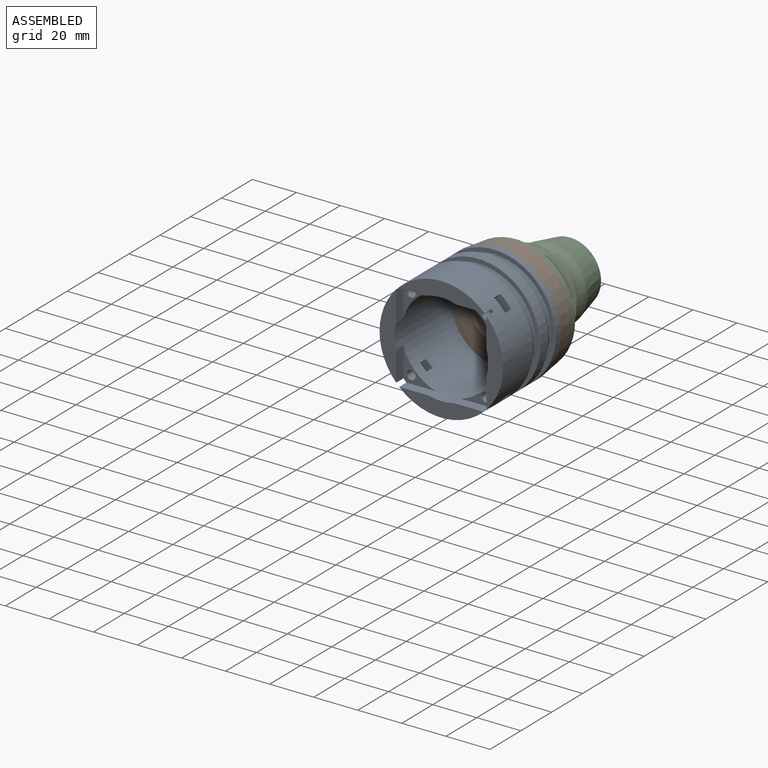
[diagram: assembled view]
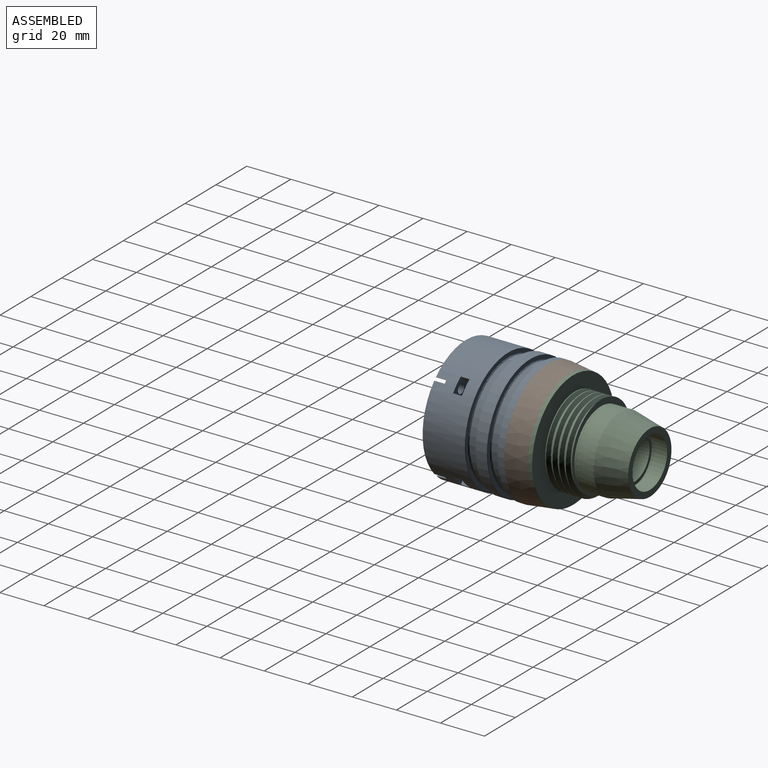
[diagram: assembled view, second angle]
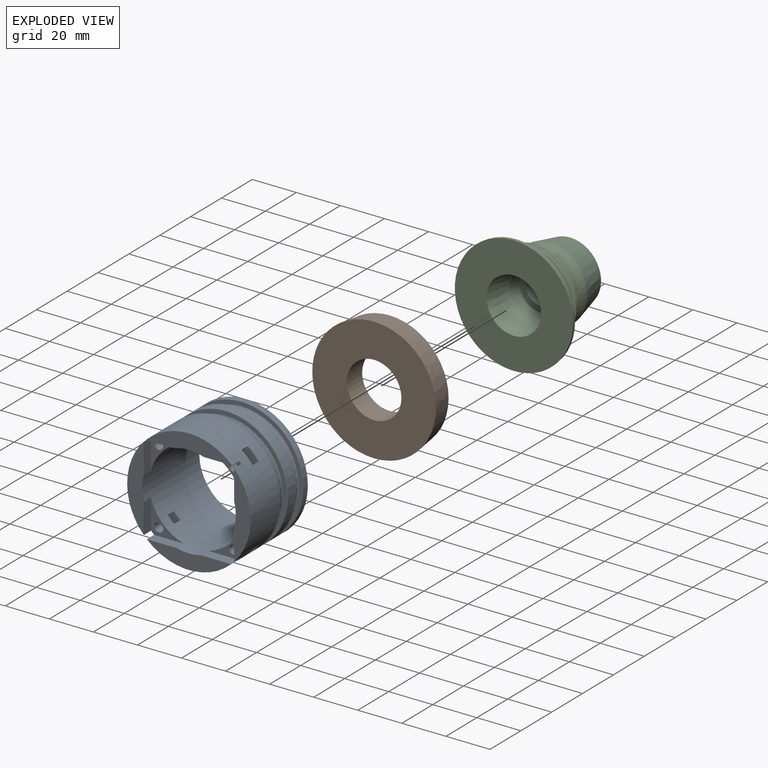
[diagram: exploded view]
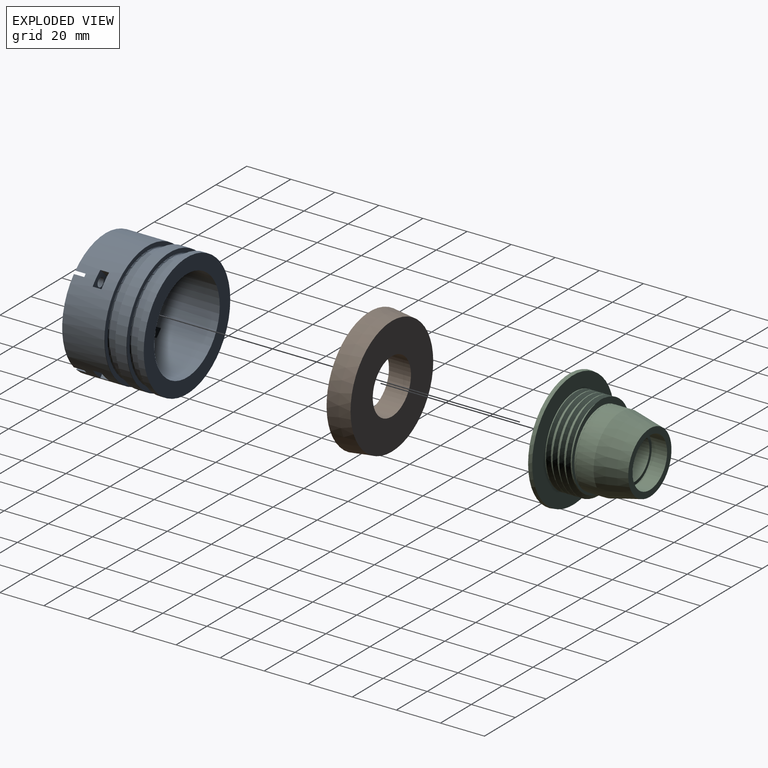
[diagram: exploded view, second angle]
ASSEMBLY  parts=3 mates=2
PART A: 75 faces, bbox 60.7x37x60.7 mm
  f0: cylinder r=25.64mm len=51.28mm, axis (0,-1,0), area 616.4mm2, adj f1,f2
  f1: torus R=26.14mm, axis (0,-1,0), area 127.4mm2, adj f0,f15
  f2: torus R=26.14mm, axis (0,-1,0), area 127.4mm2, adj f0,f33
  f3: plane 9.09x9.09mm, normal (0,1,0), area 33.7mm2, adj f4,f8,f17,f22,f25,f39,f40,f44
  f4: plane 4x2.71mm, normal (-0.71,0,-0.71), area 15.3mm2, adj f3,f8,f51,f65
  f5: plane 9.09x9.09mm, normal (0,-1,0), area 46.3mm2, adj f24,f27,f29,f32,f34,f46,f48,f59
  f6: plane 55.9x55.9mm, normal (0,-1,0), area 307mm2, adj f37,f53
  f7: plane 4x1.43mm, normal (0.71,0,0.71), area 8.1mm2, adj f13,f41,f58,f60
  f8: plane 4x1.43mm, normal (-0.71,0,-0.71), area 8.1mm2, adj f3,f4,f25,f51
  f9: plane 4x2mm, normal (0.71,0,-0.71), area 11.3mm2, adj f35,f45,f50,f65
  f10: plane 13.55x4.7mm, normal (1,0,0), area 63.7mm2, adj f42,f57,f59,f65
  f11: plane 4x1.61mm, normal (0.26,0,-0.97), area 6.6mm2, adj f13,f28,f59,f60
  f12: plane 4x1.43mm, normal (-0.71,0,0.71), area 8.1mm2, adj f19,f35,f45,f52
  f13: plane 9.09x9.09mm, normal (0,1,0), area 33.7mm2, adj f7,f11,f28,f36,f38,f41,f56,f58
  f14: plane 13.55x4.7mm, normal (-1,0,0), area 63.7mm2, adj f59,f65,f67,f72
  f15: plane 55.9x55.9mm, normal (0,1,0), area 307mm2, adj f1,f18
  f16: cylinder r=28.05mm len=56.1mm, axis (0,1,0), area 876.6mm2, adj f31,f49
  f17: plane 4x2.13mm, normal (0.71,0,0.71), area 12.1mm2, adj f3,f40,f44,f51
  f18: torus R=27.95mm, axis (0,1,0), area 27.6mm2, adj f15,f65
  f19: plane 4x2.71mm, normal (-0.71,0,0.71), area 15.3mm2, adj f12,f35,f45,f65
  f20: torus R=26.14mm, axis (0,-1,0), area 127.4mm2, adj f23,f64
  f21: cylinder r=2mm len=5mm, axis (0,-1,0), area 62.8mm2, adj f42,f54
  f22: plane 4x2mm, normal (0.71,0,0.71), area 11.3mm2, adj f3,f40,f51,f65
  f23: cylinder r=25.64mm len=51.28mm, axis (0,-1,0), area 616.4mm2, adj f20,f37
  f24: plane 4x2.13mm, normal (-0.71,0,0.71), area 12.1mm2, adj f5,f29,f46,f54
  f25: plane 4x1.6mm, normal (-0.97,0,0.26), area 6.6mm2, adj f3,f8,f51,f59
  f26: plane 12.76x4.7mm, normal (0,0,-1), area 60mm2, adj f59,f65,f67,f74
  f27: plane 4x2.71mm, normal (0.71,0,-0.71), area 15.3mm2, adj f5,f48,f54,f65
  f28: plane 4x2.13mm, normal (-0.71,0,-0.71), area 12.1mm2, adj f11,f13,f36,f60
  f29: plane 4x0mm, normal (0,0,-1), area 0mm2, adj f5,f24,f32,f54
  f30: plane 13.55x4.7mm, normal (0,0,1), area 63.7mm2, adj f42,f59,f65,f73
  f31: torus R=27.95mm, axis (0,-1,0), area 27.6mm2, adj f16,f33
  f32: plane 4x2mm, normal (-0.71,0,0.71), area 11.3mm2, adj f5,f29,f54,f65
  f33: plane 55.9x55.9mm, normal (0,-1,0), area 307mm2, adj f2,f31
  f34: plane 4x1.6mm, normal (-0.26,0,-0.97), area 6.6mm2, adj f5,f48,f54,f59
  f35: plane 9.09x9.09mm, normal (0,-1,0), area 46.3mm2, adj f9,f12,f19,f50,f52,f55,f59,f61
  f36: plane 4x0mm, normal (1,0,0), area 0mm2, adj f13,f28,f38,f60
  f37: torus R=26.14mm, axis (0,-1,0), area 127.4mm2, adj f6,f23
  f38: plane 4x2mm, normal (-0.71,0,-0.71), area 11.3mm2, adj f13,f36,f60,f65
  f39: cylinder r=2mm len=5mm, axis (0,-1,0), area 62.8mm2, adj f3,f71
  f40: plane 4x0mm, normal (-1,0,0), area 0mm2, adj f3,f17,f22,f51
  f41: plane 4x1.6mm, normal (0.97,0,-0.26), area 6.6mm2, adj f7,f13,f59,f60
  f42: plane 14.9x14.9mm, normal (0,-1,0), area 57.7mm2, adj f10,f21,f30,f59,f65
  f43: plane 12.76x4.7mm, normal (0,0,-1), area 60mm2, adj f59,f65,f71,f74
  f44: plane 4x1.61mm, normal (-0.26,0,0.97), area 6.6mm2, adj f3,f17,f51,f59
  f45: plane 9.09x9.09mm, normal (0,1,0), area 33.7mm2, adj f9,f12,f19,f47,f50,f52,f55,f59
  f46: plane 4x1.61mm, normal (-0.97,0,-0.26), area 6.6mm2, adj f5,f24,f54,f59
  f47: cylinder r=2mm len=5mm, axis (0,-1,0), area 62.8mm2, adj f45,f67
  f48: plane 4x1.43mm, normal (0.71,0,-0.71), area 8.1mm2, adj f5,f27,f34,f54
  f49: torus R=27.95mm, axis (0,-1,0), area 27.6mm2, adj f16,f64
  f50: plane 4x0mm, normal (0,0,1), area 0mm2, adj f9,f35,f45,f55
  f51: plane 9.09x9.09mm, normal (0,-1,0), area 46.3mm2, adj f4,f8,f17,f22,f25,f40,f44,f59
  f52: plane 4x1.6mm, normal (0.26,0,0.97), area 6.6mm2, adj f12,f35,f45,f59
  f53: torus R=27.95mm, axis (0,-1,0), area 27.6mm2, adj f6,f63
  f54: plane 9.09x9.09mm, normal (0,1,0), area 33.7mm2, adj f21,f24,f27,f29,f32,f34,f46,f48
  f55: plane 4x2.13mm, normal (0.71,0,-0.71), area 12.1mm2, adj f35,f45,f50,f61
  f56: cylinder r=2mm len=5mm, axis (0,-1,0), area 62.8mm2, adj f13,f68
  f57: plane 38.29x7.55mm, normal (0,-1,0), area 192.9mm2, adj f10,f59,f65,f69
  f58: plane 4x2.71mm, normal (0.71,0,0.71), area 15.3mm2, adj f7,f13,f60,f65
  f59: cylinder r=21.25mm len=42.5mm, axis (0,1,0), area 4470.7mm2, adj f3,f5,f10,f11,f13,f14,f25,f26
  f60: plane 9.09x9.09mm, normal (0,-1,0), area 46.3mm2, adj f7,f11,f28,f36,f38,f41,f58,f59
  f61: plane 4x1.61mm, normal (0.97,0,0.26), area 6.6mm2, adj f35,f45,f55,f59
  f62: plane 56.1x56.1mm, normal (0,1,0), area 1052.8mm2, adj f59,f63
  f63: cylinder r=28.05mm len=56.1mm, axis (0,1,0), area 500.7mm2, adj f53,f62
  f64: plane 55.9x55.9mm, normal (0,1,0), area 307mm2, adj f20,f49
  f65: cylinder r=28.05mm len=56.1mm, axis (0,1,0), area 3228.2mm2, adj f3,f4,f5,f9,f10,f13,f14,f18
  f66: plane 13.55x4.7mm, normal (0,0,1), area 63.7mm2, adj f59,f65,f68,f73
  f67: plane 14.55x13.75mm, normal (0,-1,0), area 53.1mm2, adj f14,f26,f47,f59,f65
  f68: plane 14.9x14.9mm, normal (0,-1,0), area 57.7mm2, adj f56,f59,f65,f66,f70
  f69: plane 13.55x4.7mm, normal (1,0,0), area 63.7mm2, adj f57,f59,f65,f71
  f70: plane 13.55x4.7mm, normal (-1,0,0), area 63.7mm2, adj f59,f65,f68,f72
  f71: plane 14.55x13.75mm, normal (0,-1,0), area 53.1mm2, adj f39,f43,f59,f65,f69
  f72: plane 38.29x7.55mm, normal (0,-1,0), area 192.9mm2, adj f14,f59,f65,f70
  f73: plane 38.29x7.55mm, normal (0,-1,0), area 192.9mm2, adj f30,f59,f65,f66
  f74: plane 39.02x7.9mm, normal (0,-1,0), area 202.1mm2, adj f26,f43,f59,f65
PART B: 4 faces, bbox 56.1x10x56.1 mm
  f0: plane 56.1x56.1mm, normal (0,-1,0), area 1988.4mm2, adj f2,f3
  f1: plane 53.62x53.62mm, normal (0,1,0), area 1774.7mm2, adj f2,f3
  f2: cone r=26.81mm half-angle=7.1deg, axis (0,-1,0), area 1736.6mm2, adj f0,f1
  f3: cylinder r=12.4mm len=24.8mm, axis (0,1,0), area 779.1mm2, adj f0,f1
PART C: 21 faces, bbox 54.5x37.4x54.5 mm
  f0: bspline ~39.65x39.39mm, area 985mm2, adj f1,f2,f11,f13
  f1: cylinder r=19.88mm len=39.76mm, axis (0,1,0), area 194.6mm2, adj f0,f2,f11,f12
  f2: plane 54.09x54.09mm, normal (0,1,0), area 1093.8mm2, adj f0,f1,f3,f12,f13
  f3: cone r=28.35mm half-angle=7deg, axis (0,-1,0), area 287.4mm2, adj f2,f4
  f4: plane 53.62x53.62mm, normal (0,-1,0), area 1774.7mm2, adj f3,f5
  f5: cone r=13mm half-angle=13.1deg, axis (0,-1,0), area 798.8mm2, adj f4,f14
  f6: plane 28.06x28.06mm, normal (0,1,0), area 224.1mm2, adj f7,f16
  f7: cone r=15.58mm half-angle=12.9deg, axis (0,-1,0), area 1358.4mm2, adj f6,f8
  f8: cylinder r=17.13mm len=34.26mm, axis (0,-1,0), area 862.8mm2, adj f7,f9
  f9: cone r=18.74mm half-angle=5.7deg, axis (0,1,0), area 0.2mm2, adj f8,f10
  f10: cylinder r=17.13mm len=34.26mm, axis (0,1,0), area 85.5mm2, adj f9,f11
  f11: plane 38.94x38.75mm, normal (0,1,0), area 207.4mm2, adj f0,f1,f10,f12,f13
  f12: bspline ~39.67x39.44mm, area 985mm2, adj f1,f2,f11,f13
  f13: cylinder r=18.16mm len=36.33mm, axis (0,1,0), area 304.4mm2, adj f0,f2,f11,f12
  f14: cylinder r=9.8mm len=19.6mm, axis (0,-1,0), area 403mm2, adj f5,f15
  f15: plane 19.6x19.6mm, normal (0,-1,0), area 147.8mm2, adj f14,f19
  f16: cylinder r=11.2mm len=22.4mm, axis (0,-1,0), area 492.6mm2, adj f6,f17
  f17: plane 22.4x22.4mm, normal (0,1,0), area 92.4mm2, adj f16,f20
  f18: plane 19.6x19.6mm, normal (0,1,0), area 147.8mm2, adj f19,f20
  f19: cylinder r=7mm len=14mm, axis (0,-1,0), area 211.1mm2, adj f15,f18
  f20: cylinder r=9.8mm len=19.6mm, axis (0,1,0), area 431mm2, adj f17,f18
PLACE A t=(0,-15.4,0)mm
PLACE B t=(0,-15.4,0)mm
PLACE C t=(0,-40.4,0)mm
MATE fastened C.f3 <-> B.f2  axis (0,-1,0) through (0,52.53,0)mm
MATE fastened A.f23 <-> B.f2  axis (0,1,0) through (0,42.53,0)mm
